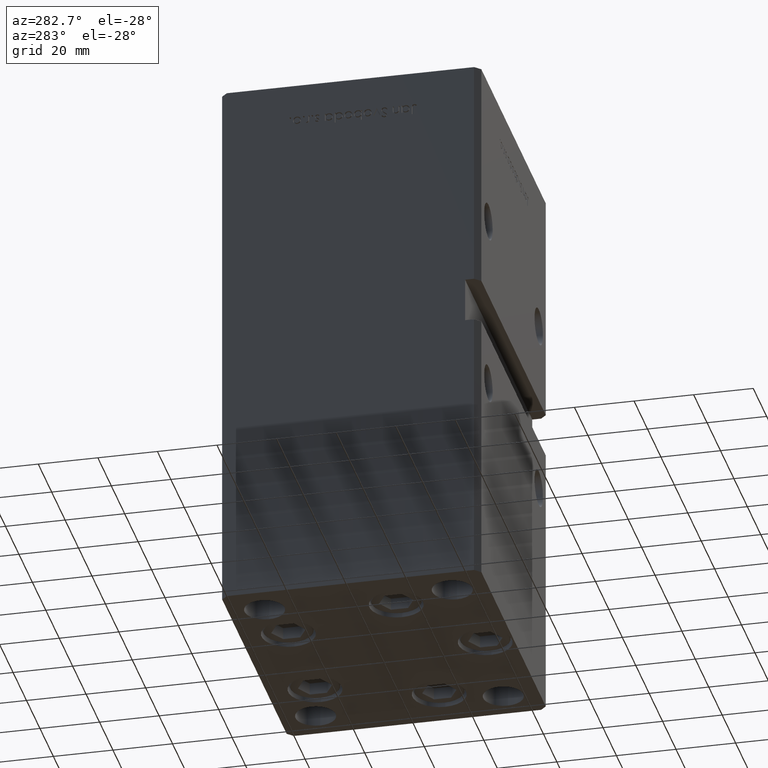
[diagram: clean part render]
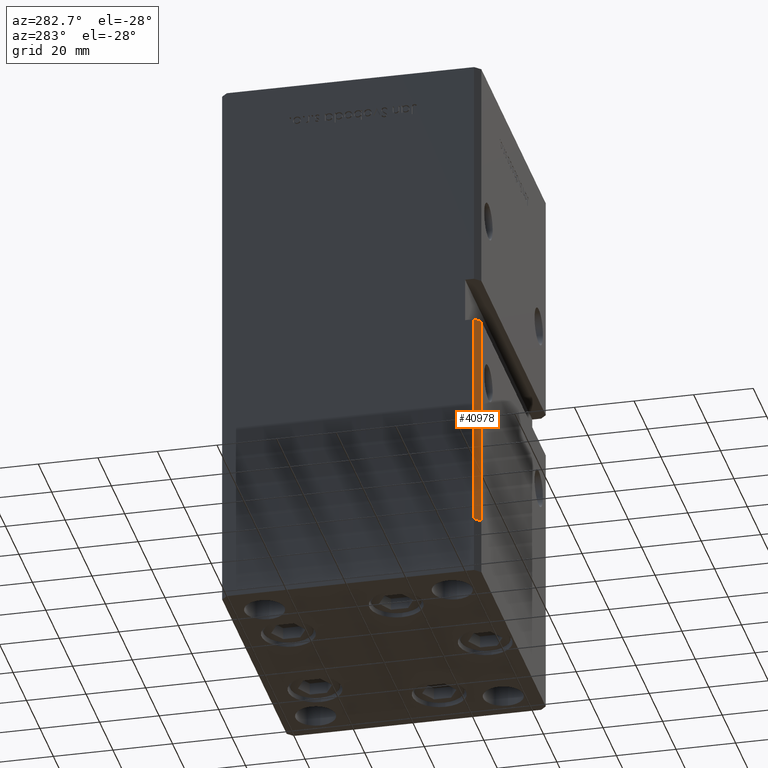
[diagram: same view with one face highlighted and labeled with its STEP entity id]
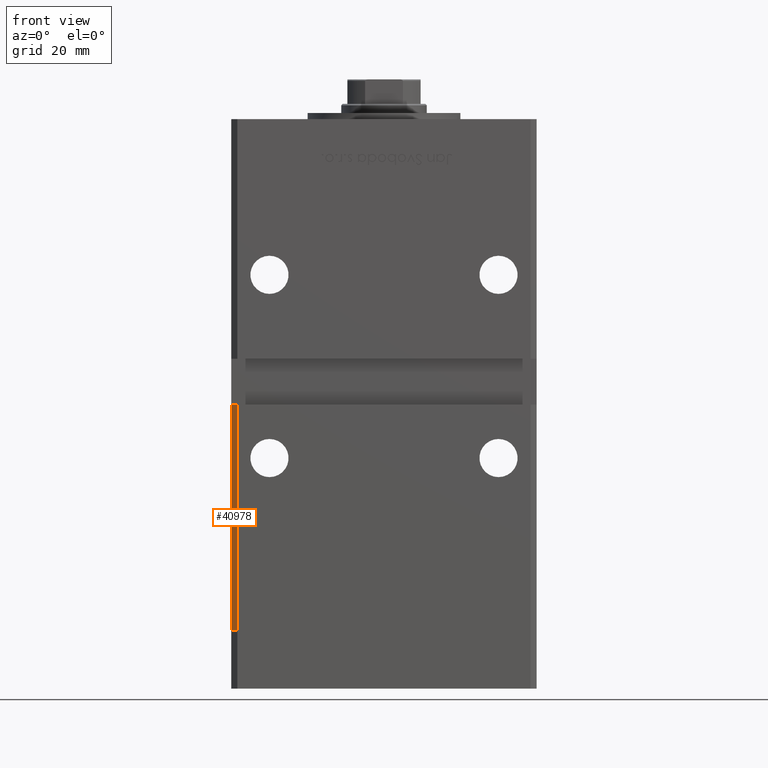
[diagram: same view with one face highlighted and labeled with its STEP entity id]
A machine part, auxiliary view. The second image highlights one B-rep face of the part: STEP entity #40978.
A second angle (front view) of the same face is appended — the face is thin or edge-on in the first view.
In plain terms, the highlighted planar face has unit normal (0.7071, 0.7071, 0).
Its self-contained STEP definition (entity closure, byte-faithful):
#538 = EDGE_CURVE ( 'NONE', #14035, #47140, #45972, .T. ) ;
#1550 = CARTESIAN_POINT ( 'NONE',  ( -47.99999999999998579, -43.50000000000000000, 0.000000000000000000 ) ) ;
#1706 = LINE ( 'NONE', #50923, #16307 ) ;
#2213 = DIRECTION ( 'NONE',  ( 0.7071067811865475727, 0.7071067811865475727, -0.000000000000000000 ) ) ;
#2535 = EDGE_CURVE ( 'NONE', #3959, #38155, #30568, .T. ) ;
#2758 = ORIENTED_EDGE ( 'NONE', *, *, #2535, .F. ) ;
#3959 = VERTEX_POINT ( 'NONE', #48221 ) ;
#6260 = FACE_OUTER_BOUND ( 'NONE', #9873, .T. ) ;
#7918 = ORIENTED_EDGE ( 'NONE', *, *, #27340, .T. ) ;
#8276 = CARTESIAN_POINT ( 'NONE',  ( -49.99999999999998579, -41.49999999999999289, 74.00000000000000000 ) ) ;
#8663 = ORIENTED_EDGE ( 'NONE', *, *, #538, .T. ) ;
#8851 = DIRECTION ( 'NONE',  ( -0.000000000000000000, -0.000000000000000000, -1.000000000000000000 ) ) ;
#9873 = EDGE_LOOP ( 'NONE', ( #2758, #7918, #8663, #22931 ) ) ;
#11389 = VECTOR ( 'NONE', #37610, 1000.000000000000114 ) ;
#14035 = VERTEX_POINT ( 'NONE', #8276 ) ;
#16307 = VECTOR ( 'NONE', #18112, 1000.000000000000114 ) ;
#18112 = DIRECTION ( 'NONE',  ( -0.7071067811865474617, 0.7071067811865474617, 0.000000000000000000 ) ) ;
#18335 = AXIS2_PLACEMENT_3D ( 'NONE', #39093, #2213, #35049 ) ;
#21709 = DIRECTION ( 'NONE',  ( -0.000000000000000000, -0.000000000000000000, -1.000000000000000000 ) ) ;
#22233 = CARTESIAN_POINT ( 'NONE',  ( -47.99999999999998579, -43.50000000000000000, 148.5000000000000000 ) ) ;
#22668 = PLANE ( 'NONE',  #18335 ) ;
#22931 = ORIENTED_EDGE ( 'NONE', *, *, #38495, .T. ) ;
#25529 = CARTESIAN_POINT ( 'NONE',  ( -49.99999999999998579, -41.49999999999999289, 148.5000000000000000 ) ) ;
#27340 = EDGE_CURVE ( 'NONE', #3959, #14035, #1706, .T. ) ;
#30066 = CARTESIAN_POINT ( 'NONE',  ( -49.99999999999998579, -41.49999999999999289, 0.000000000000000000 ) ) ;
#30568 = LINE ( 'NONE', #22233, #47008 ) ;
#34086 = VECTOR ( 'NONE', #8851, 1000.000000000000000 ) ;
#35049 = DIRECTION ( 'NONE',  ( -0.7071067811865474617, 0.7071067811865474617, 0.000000000000000000 ) ) ;
#37610 = DIRECTION ( 'NONE',  ( 0.7071067811865474617, -0.7071067811865474617, 0.000000000000000000 ) ) ;
#37891 = LINE ( 'NONE', #30066, #11389 ) ;
#38155 = VERTEX_POINT ( 'NONE', #1550 ) ;
#38495 = EDGE_CURVE ( 'NONE', #47140, #38155, #37891, .T. ) ;
#39093 = CARTESIAN_POINT ( 'NONE',  ( -49.99999999999998579, -41.49999999999999289, 148.5000000000000000 ) ) ;
#39100 = CARTESIAN_POINT ( 'NONE',  ( -49.99999999999998579, -41.49999999999999289, 0.000000000000000000 ) ) ;
#40978 = ADVANCED_FACE ( 'NONE', ( #6260 ), #22668, .F. ) ;
#45972 = LINE ( 'NONE', #25529, #34086 ) ;
#47008 = VECTOR ( 'NONE', #21709, 1000.000000000000000 ) ;
#47140 = VERTEX_POINT ( 'NONE', #39100 ) ;
#48221 = CARTESIAN_POINT ( 'NONE',  ( -47.99999999999998579, -43.50000000000000000, 74.00000000000000000 ) ) ;
#50923 = CARTESIAN_POINT ( 'NONE',  ( -49.99999999999998579, -41.49999999999999289, 74.00000000000000000 ) ) ;